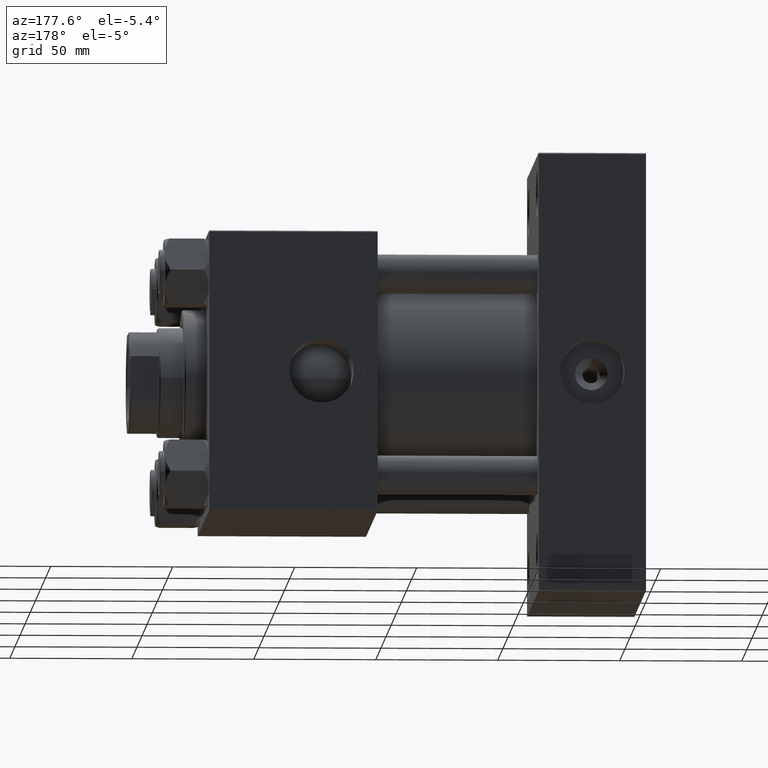
[diagram: clean part render]
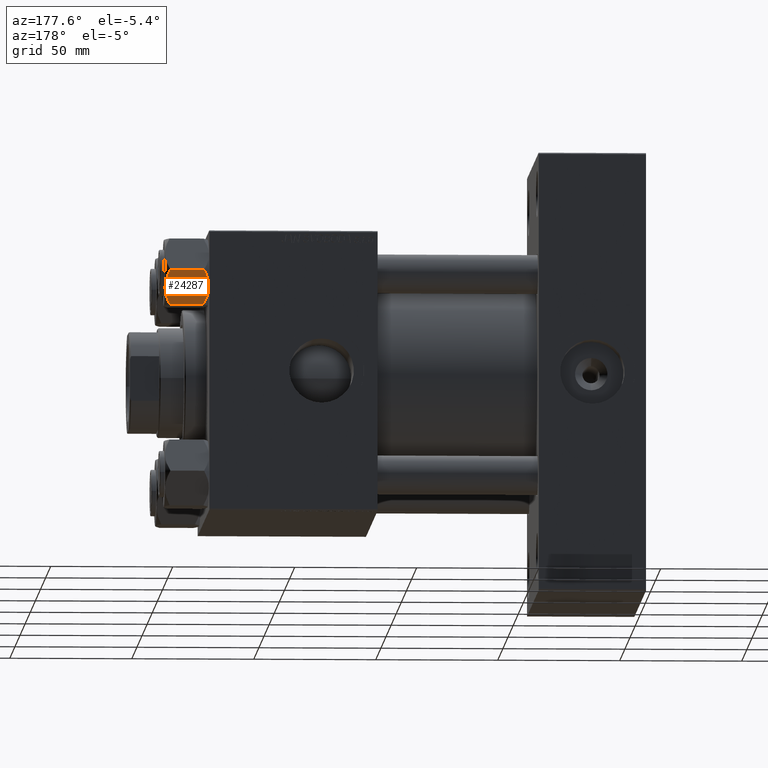
[diagram: same view with one face highlighted and labeled with its STEP entity id]
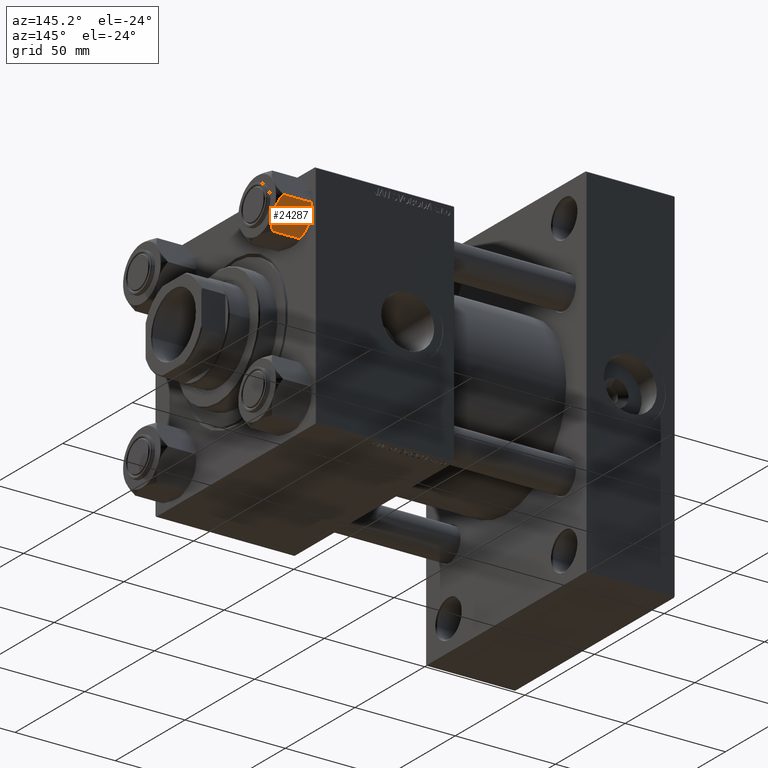
[diagram: same view with one face highlighted and labeled with its STEP entity id]
A machine part, auxiliary view. The second image highlights one B-rep face of the part: STEP entity #24287.
A second angle (auxiliary view) of the same face is appended — the face is thin or edge-on in the first view.
In plain terms, the highlighted planar face has unit normal (-0, -0.866, 0.5).
Its self-contained STEP definition (entity closure, byte-faithful):
#424 = VECTOR ( 'NONE', #11349, 1000.000000000000114 ) ;
#579 = EDGE_CURVE ( 'NONE', #48244, #26209, #30243, .T. ) ;
#791 = EDGE_CURVE ( 'NONE', #39263, #15800, #50105, .T. ) ;
#1034 = CARTESIAN_POINT ( 'NONE',  ( 8.202637790192655487, -12.84724820552769309, -16.29368822085855584 ) ) ;
#1351 = DIRECTION ( 'NONE',  ( -0.5000000000000002220, -0.8660254037844384856, 0.000000000000000000 ) ) ;
#2200 = CARTESIAN_POINT ( 'NONE',  ( 15.62000000000000455, -1.379485931020374819E-15, -16.00000000000000000 ) ) ;
#2992 = CARTESIAN_POINT ( 'NONE',  ( 11.71499999999999631, -6.763658403556465970, 0.000000000000000000 ) ) ;
#3057 = VERTEX_POINT ( 'NONE', #47933 ) ;
#3496 = CARTESIAN_POINT ( 'NONE',  ( 12.04818928091285635, -6.186557640478069331, -17.99999999999998224 ) ) ;
#3652 = LINE ( 'NONE', #11547, #38472 ) ;
#3995 = ORIENTED_EDGE ( 'NONE', *, *, #9239, .F. ) ;
#4858 = CARTESIAN_POINT ( 'NONE',  ( 8.506059550806629233, -12.32170630002228684, -16.56553707812499709 ) ) ;
#5038 = DIRECTION ( 'NONE',  ( -0.000000000000000000, -0.000000000000000000, 1.000000000000000000 ) ) ;
#5404 = CARTESIAN_POINT ( 'NONE',  ( 15.62000000000000455, -1.379485931020374819E-15, -16.00000000000000000 ) ) ;
#6159 = FACE_OUTER_BOUND ( 'NONE', #29207, .T. ) ;
#6884 = B_SPLINE_CURVE_WITH_KNOTS ( 'NONE', 3,
 ( #47760, #22230, #25300, #49002, #38053, #14085, #41620, #10249 ),
 .UNSPECIFIED., .F., .F.,
 ( 4, 2, 2, 4 ),
 ( 0.007890825462474404875, 0.01181022244528550681, 0.01376992093669105778, 0.01572961942809661048 ),
 .UNSPECIFIED. ) ;
#7403 = CARTESIAN_POINT ( 'NONE',  ( 11.71499999999999453, -6.763658403556466858, -18.00000000000000000 ) ) ;
#7567 = VERTEX_POINT ( 'NONE', #48483 ) ;
#9239 = EDGE_CURVE ( 'NONE', #15800, #10368, #21102, .T. ) ;
#9302 = EDGE_CURVE ( 'NONE', #3057, #13463, #48373, .T. ) ;
#10249 = CARTESIAN_POINT ( 'NONE',  ( 15.52647173767731736, -0.1619957022865265162, -2.000000000000000000 ) ) ;
#10368 = VERTEX_POINT ( 'NONE', #43171 ) ;
#10382 = CARTESIAN_POINT ( 'NONE',  ( 10.38662926516872353, -9.064464007571848114, -0.2430846701013040789 ) ) ;
#10404 = EDGE_CURVE ( 'NONE', #48244, #3057, #36270, .T. ) ;
#11349 = DIRECTION ( 'NONE',  ( 0.5000000000000002220, 0.8660254037844384856, -0.000000000000000000 ) ) ;
#11547 = CARTESIAN_POINT ( 'NONE',  ( 15.62000000000000455, -1.379485931020374819E-15, -1.999999999999998224 ) ) ;
#12661 = VECTOR ( 'NONE', #29737, 1000.000000000000000 ) ;
#12919 = ORIENTED_EDGE ( 'NONE', *, *, #22845, .F. ) ;
#13179 = CARTESIAN_POINT ( 'NONE',  ( 15.52647173767731736, -0.1619957022865265162, -2.000000000000000000 ) ) ;
#13463 = VERTEX_POINT ( 'NONE', #24797 ) ;
#14085 = CARTESIAN_POINT ( 'NONE',  ( 14.92394044919337759, -1.205610507090651762, -1.434462921875006680 ) ) ;
#14977 = CARTESIAN_POINT ( 'NONE',  ( 12.38621571200405214, -5.601078687526937827, -17.94910618364697186 ) ) ;
#15800 = VERTEX_POINT ( 'NONE', #45203 ) ;
#16163 = AXIS2_PLACEMENT_3D ( 'NONE', #25043, #32706, #1351 ) ;
#16329 = CARTESIAN_POINT ( 'NONE',  ( 9.124083218049248600, -11.25125790807802595, -17.05261278537718184 ) ) ;
#16996 = LINE ( 'NONE', #24422, #45002 ) ;
#18534 = CARTESIAN_POINT ( 'NONE',  ( 11.38181071908714692, -7.340759166634870603, -8.177256072793013896E-15 ) ) ;
#19919 = ORIENTED_EDGE ( 'NONE', *, *, #10404, .F. ) ;
#21102 = B_SPLINE_CURVE_WITH_KNOTS ( 'NONE', 3,
 ( #49138, #26691, #37933, #21852, #10382, #37430, #18534, #2992 ),
 .UNSPECIFIED., .F., .F.,
 ( 4, 2, 2, 4 ),
 ( 4.472842641884425184E-07, 0.003945636373369292710, 0.005918230917921847925, 0.007890825462474404875 ),
 .UNSPECIFIED. ) ;
#21458 = PLANE ( 'NONE',  #16163 ) ;
#21852 = CARTESIAN_POINT ( 'NONE',  ( 10.06459418565412989, -9.622245127110605978, -0.3836066851120653598 ) ) ;
#22039 = B_SPLINE_CURVE_WITH_KNOTS ( 'NONE', 3,
 ( #7403, #39031, #46916, #39293, #16329, #4858, #1034, #36209 ),
 .UNSPECIFIED., .F., .F.,
 ( 4, 2, 2, 4 ),
 ( 0.007890825462474406610, 0.01181022244528550855, 0.01376992093669106125, 0.01572961942809661395 ),
 .UNSPECIFIED. ) ;
#22230 = CARTESIAN_POINT ( 'NONE',  ( 12.37702203890362895, -5.617002596445059837, -8.339886398665841138E-15 ) ) ;
#22845 = EDGE_CURVE ( 'NONE', #13463, #7567, #22039, .T. ) ;
#22874 = CARTESIAN_POINT ( 'NONE',  ( 14.92760668674624291, -1.199260397376471499, -16.58801072835992940 ) ) ;
#24287 = ADVANCED_FACE ( 'NONE', ( #6159 ), #21458, .F. ) ;
#24422 = CARTESIAN_POINT ( 'NONE',  ( 7.810000000000002274, -13.52731680711293372, -18.00000000000000000 ) ) ;
#24797 = CARTESIAN_POINT ( 'NONE',  ( 11.71499999999999453, -6.763658403556466858, -18.00000000000000000 ) ) ;
#25043 = CARTESIAN_POINT ( 'NONE',  ( 15.62000000000000455, -1.379485931020374819E-15, -18.00000000000000000 ) ) ;
#25300 = CARTESIAN_POINT ( 'NONE',  ( 13.02784502466562522, -4.489744118371594261, -0.1971866459924624670 ) ) ;
#25529 = DIRECTION ( 'NONE',  ( -0.5000000000000002220, -0.8660254037844384856, 0.000000000000000000 ) ) ;
#25942 = CARTESIAN_POINT ( 'NONE',  ( 15.52647173767731736, -0.1619957022865265162, -16.00000000000000000 ) ) ;
#26194 = CARTESIAN_POINT ( 'NONE',  ( 13.04337073483127796, -4.462852799541095372, -17.75691532989869614 ) ) ;
#26209 = VERTEX_POINT ( 'NONE', #49241 ) ;
#26410 = LINE ( 'NONE', #2200, #30379 ) ;
#26472 = CARTESIAN_POINT ( 'NONE',  ( 7.810000000000002274, -13.52731680711293372, -1.999999999999998224 ) ) ;
#26691 = CARTESIAN_POINT ( 'NONE',  ( 8.502393313253762130, -12.32805640973647598, -1.411989271640070598 ) ) ;
#27105 = DIRECTION ( 'NONE',  ( 0.5000000000000002220, 0.8660254037844384856, -0.000000000000000000 ) ) ;
#28917 = CARTESIAN_POINT ( 'NONE',  ( 15.62000000000000455, -1.379485931020374819E-15, -16.00000000000000000 ) ) ;
#29207 = EDGE_LOOP ( 'NONE', ( #19919, #30157, #37874, #30720, #3995, #32826, #44826, #39586, #12919, #32282 ) ) ;
#29737 = DIRECTION ( 'NONE',  ( -0.000000000000000000, -0.000000000000000000, 1.000000000000000000 ) ) ;
#30157 = ORIENTED_EDGE ( 'NONE', *, *, #579, .T. ) ;
#30243 = LINE ( 'NONE', #41465, #12661 ) ;
#30379 = VECTOR ( 'NONE', #45027, 1000.000000000000114 ) ;
#30720 = ORIENTED_EDGE ( 'NONE', *, *, #43299, .F. ) ;
#30743 = CARTESIAN_POINT ( 'NONE',  ( 15.62000000000000455, -1.379485931020374819E-15, -1.999999999999998224 ) ) ;
#32282 = ORIENTED_EDGE ( 'NONE', *, *, #9302, .F. ) ;
#32706 = DIRECTION ( 'NONE',  ( -0.8660254037844385966, 0.5000000000000003331, 0.000000000000000000 ) ) ;
#32826 = ORIENTED_EDGE ( 'NONE', *, *, #791, .F. ) ;
#33203 = VECTOR ( 'NONE', #25529, 1000.000000000000114 ) ;
#34351 = CARTESIAN_POINT ( 'NONE',  ( 13.36540581434586983, -3.905071680002335288, -17.61639331488792948 ) ) ;
#36209 = CARTESIAN_POINT ( 'NONE',  ( 7.903528262322685904, -13.36532110482641400, -16.00000000000000000 ) ) ;
#36270 = LINE ( 'NONE', #5404, #33203 ) ;
#37237 = EDGE_CURVE ( 'NONE', #40795, #26209, #3652, .T. ) ;
#37430 = CARTESIAN_POINT ( 'NONE',  ( 11.04378428799594936, -7.926238119586001218, -0.05089381635302238360 ) ) ;
#37679 = CARTESIAN_POINT ( 'NONE',  ( 11.71499999999999453, -6.763658403556466858, -18.00000000000000000 ) ) ;
#37874 = ORIENTED_EDGE ( 'NONE', *, *, #37237, .F. ) ;
#37933 = CARTESIAN_POINT ( 'NONE',  ( 9.114548888011796635, -11.26777185211903110, -0.9142282604026980009 ) ) ;
#38053 = CARTESIAN_POINT ( 'NONE',  ( 14.30591678195075644, -2.276058899034912653, -0.9473872146228189406 ) ) ;
#38438 = CARTESIAN_POINT ( 'NONE',  ( 14.31545111198821019, -2.259544954993912391, -17.08577173959730544 ) ) ;
#38472 = VECTOR ( 'NONE', #27105, 1000.000000000000114 ) ;
#38577 = EDGE_CURVE ( 'NONE', #50218, #39263, #16996, .T. ) ;
#38662 = EDGE_CURVE ( 'NONE', #7567, #50218, #26410, .T. ) ;
#39031 = CARTESIAN_POINT ( 'NONE',  ( 11.05297796109638142, -7.910314210667883650, -17.99999999999999289 ) ) ;
#39263 = VERTEX_POINT ( 'NONE', #26472 ) ;
#39293 = CARTESIAN_POINT ( 'NONE',  ( 9.439480280627268627, -10.70497417113491245, -17.26828031537187513 ) ) ;
#39586 = ORIENTED_EDGE ( 'NONE', *, *, #38662, .F. ) ;
#40795 = VERTEX_POINT ( 'NONE', #13179 ) ;
#41465 = CARTESIAN_POINT ( 'NONE',  ( 15.62000000000000455, -1.379485931020374819E-15, -18.00000000000000000 ) ) ;
#41620 = CARTESIAN_POINT ( 'NONE',  ( 15.22736220980735489, -0.6800686015852459576, -1.706311779141445273 ) ) ;
#42919 = CARTESIAN_POINT ( 'NONE',  ( 7.810000000000002274, -13.52731680711293372, -16.00000000000000000 ) ) ;
#43171 = CARTESIAN_POINT ( 'NONE',  ( 11.71499999999999631, -6.763658403556465970, 0.000000000000000000 ) ) ;
#43299 = EDGE_CURVE ( 'NONE', #10368, #40795, #6884, .T. ) ;
#44826 = ORIENTED_EDGE ( 'NONE', *, *, #38577, .F. ) ;
#45002 = VECTOR ( 'NONE', #5038, 1000.000000000000000 ) ;
#45027 = DIRECTION ( 'NONE',  ( -0.5000000000000002220, -0.8660254037844384856, 0.000000000000000000 ) ) ;
#45203 = CARTESIAN_POINT ( 'NONE',  ( 7.903528262322685904, -13.36532110482641400, -2.000000000000000000 ) ) ;
#46916 = CARTESIAN_POINT ( 'NONE',  ( 10.40215497533437627, -9.037572688741342120, -17.80281335400753662 ) ) ;
#47760 = CARTESIAN_POINT ( 'NONE',  ( 11.71499999999999631, -6.763658403556465970, 0.000000000000000000 ) ) ;
#47933 = CARTESIAN_POINT ( 'NONE',  ( 15.52647173767731736, -0.1619957022865265162, -16.00000000000000000 ) ) ;
#48244 = VERTEX_POINT ( 'NONE', #28917 ) ;
#48373 = B_SPLINE_CURVE_WITH_KNOTS ( 'NONE', 3,
 ( #25942, #22874, #38438, #34351, #26194, #14977, #3496, #37679 ),
 .UNSPECIFIED., .F., .F.,
 ( 4, 2, 2, 4 ),
 ( 4.472842641925296111E-07, 0.003945636373369297914, 0.005918230917921852262, 0.007890825462474406610 ),
 .UNSPECIFIED. ) ;
#48483 = CARTESIAN_POINT ( 'NONE',  ( 7.903528262322685904, -13.36532110482641400, -16.00000000000000000 ) ) ;
#49002 = CARTESIAN_POINT ( 'NONE',  ( 13.99051971937273997, -2.822342635978021264, -0.7317196846281193157 ) ) ;
#49138 = CARTESIAN_POINT ( 'NONE',  ( 7.903528262322685904, -13.36532110482641400, -2.000000000000000000 ) ) ;
#49241 = CARTESIAN_POINT ( 'NONE',  ( 15.62000000000000455, -1.379485931020374819E-15, -1.999999999999998224 ) ) ;
#50105 = LINE ( 'NONE', #30743, #424 ) ;
#50218 = VERTEX_POINT ( 'NONE', #42919 ) ;